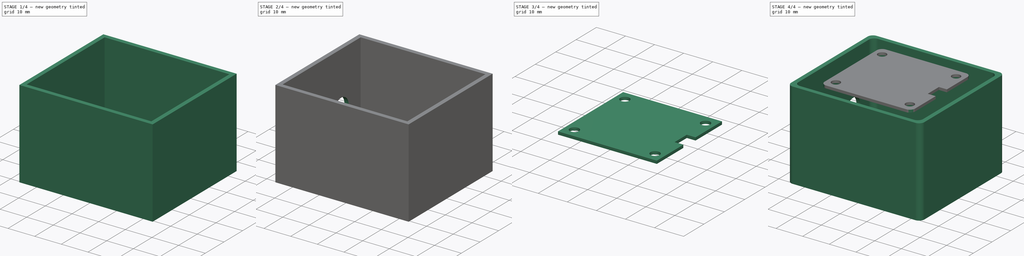
[diagram: build sequence overview — one tinted view per stage of 4, left to right]
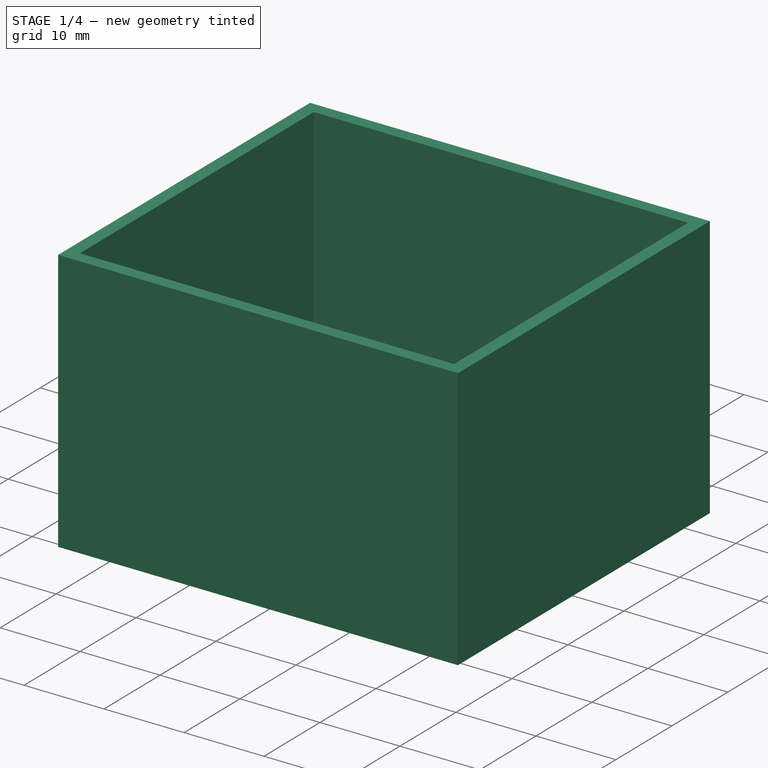
[diagram: stage 1 of 4 — iso view after this stage's code; geometry added in this stage tinted green]
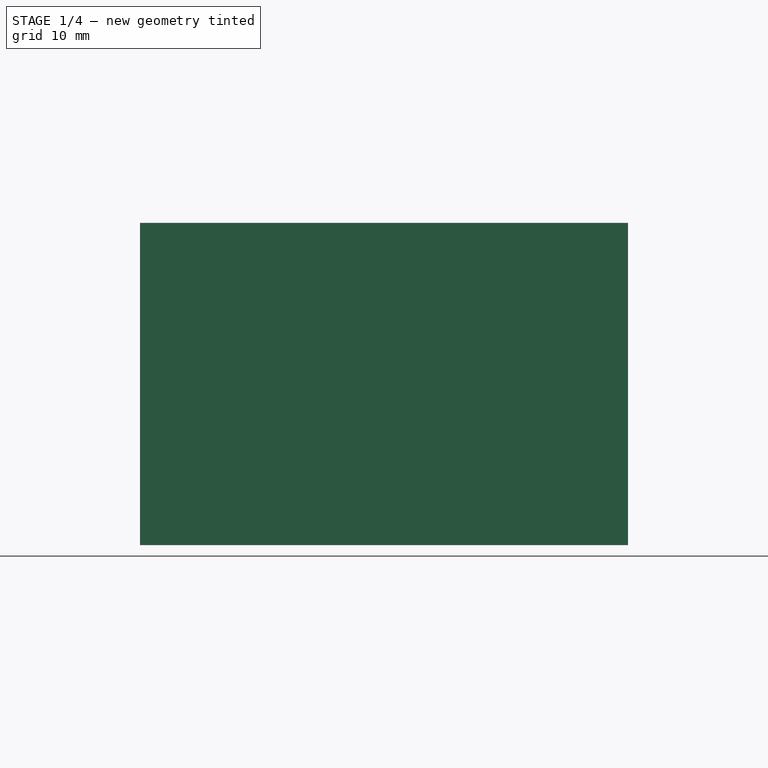
[diagram: stage 1 of 4 — front view after this stage's code; geometry added in this stage tinted green]
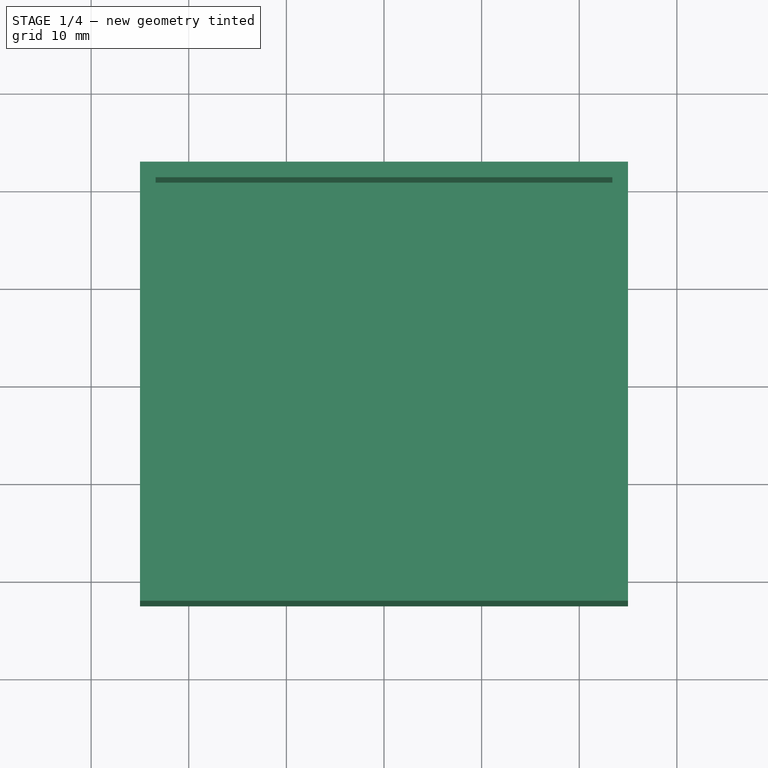
[diagram: stage 1 of 4 — top view after this stage's code; geometry added in this stage tinted green]
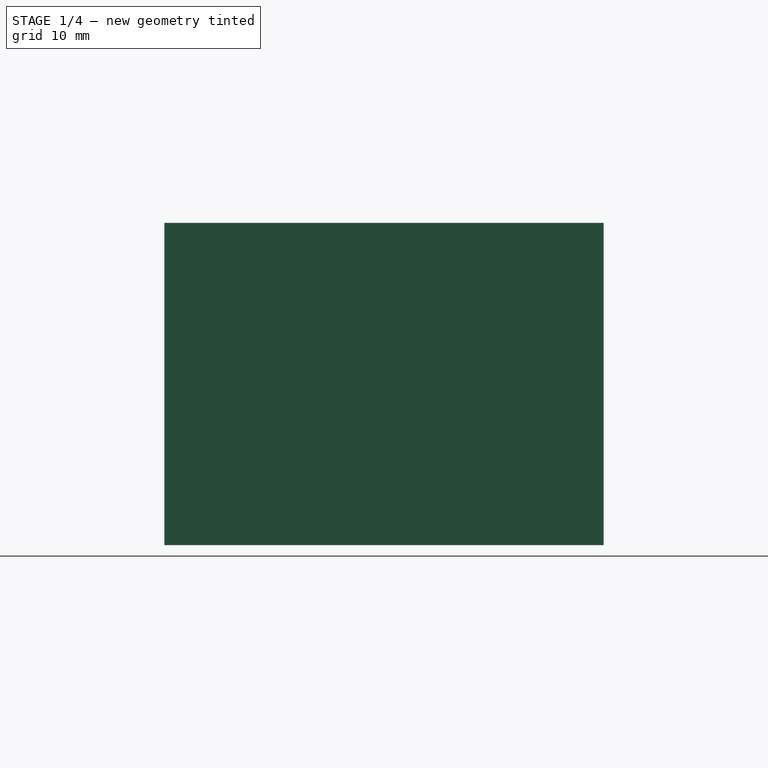
[diagram: stage 1 of 4 — right view after this stage's code; geometry added in this stage tinted green]
FCSTD DOCUMENT  (FreeCAD 0.19R24415 (Git))
Label: TAExternalPowerCase
License: All rights reserved
LicenseURL: http://en.wikipedia.org/wiki/All_rights_reserved
objects: Sketcher::SketchObject×6, PartDesign::Pad×4, PartDesign::ShapeBinder×3, PartDesign::Fillet×3, PartDesign::Body×3, PartDesign::Pocket×2, App::MeasureDistance×1
note: 30 computed .brp shape members not serialized (recipe doc carries the construction recipe); baked Part::Feature solids carry a one-line shape summary decoded from their .brp

FEATURE [Sketcher::SketchObject] Sketch
  FullyConstrained = true
  MapMode = 5
  Support = -> [XY_Plane]
  sketch-geometry (4):
    g0: LineSegment StartX=-25 StartY=22.5 StartZ=0 EndX=25 EndY=22.5 EndZ=0
    g1: LineSegment StartX=25 StartY=22.5 StartZ=0 EndX=25 EndY=-22.5 EndZ=0
    g2: LineSegment StartX=25 StartY=-22.5 StartZ=0 EndX=-25 EndY=-22.5 EndZ=0
    g3: LineSegment StartX=-25 StartY=-22.5 StartZ=0 EndX=-25 EndY=22.5 EndZ=0
  constraints (10):
    c: Coincident(g0,g1)
    c: Coincident(g1,g2)
    c: Coincident(g2,g3)
    c: Coincident(g3,g0)
    c: Horizontal(g2)
    c: Vertical(g1)
    c: Distance(g2) = 50
    c: Distance(g1) = 45
    c: Symmetric(g2,g0,g-1)
    c: Symmetric(g0,g0,g-2)
FEATURE [PartDesign::Pad] Pad
  Direction = (1,1,1)
  Length = 1
  Length2 = 100
  Profile = -> Sketch
  Type = 0
FEATURE [Sketcher::SketchObject] Sketch001
  ExternalGeometry = -> [Pad]
  FullyConstrained = true
  MapMode = 5
  Placement = pos=(0,0,1) rot=(0,0,1;0rad)
  Support = -> [Pad]
  expr: Constraints[18] = 0.4 * 4
  sketch-geometry (8):
    g0: LineSegment StartX=-25 StartY=22.5 StartZ=0 EndX=25 EndY=22.5 EndZ=0
    g1: LineSegment StartX=25 StartY=22.5 StartZ=0 EndX=25 EndY=-22.5 EndZ=0
    g2: LineSegment StartX=25 StartY=-22.5 StartZ=0 EndX=-25 EndY=-22.5 EndZ=0
    g3: LineSegment StartX=-25 StartY=-22.5 StartZ=0 EndX=-25 EndY=22.5 EndZ=0
    g4: LineSegment StartX=-23.4 StartY=20.9 StartZ=0 EndX=23.4 EndY=20.9 EndZ=0
    g5: LineSegment StartX=23.4 StartY=20.9 StartZ=0 EndX=23.4 EndY=-20.9 EndZ=0
    g6: LineSegment StartX=23.4 StartY=-20.9 StartZ=0 EndX=-23.4 EndY=-20.9 EndZ=0
    g7: LineSegment StartX=-23.4 StartY=-20.9 StartZ=0 EndX=-23.4 EndY=20.9 EndZ=0
  constraints (22):
    c: Coincident(g0,g1)
    c: Coincident(g1,g2)
    c: Coincident(g2,g3)
    c: Coincident(g3,g0)
    c: Horizontal(g0)
    c: Horizontal(g2)
    c: Vertical(g1)
    c: Vertical(g3)
    c: Coincident(g0,g-6)
    c: Coincident(g1,g-5)
    c: Coincident(g4,g5)
    c: Coincident(g5,g6)
    c: Coincident(g6,g7)
    c: Coincident(g7,g4)
    c: Horizontal(g4)
    c: Horizontal(g6)
    c: Vertical(g5)
    c: Vertical(g7)
    c: DistanceX(g0,g4) = 1.6
    c: DistanceY(g4,g0) = 1.6
    c: DistanceY(g1,g5) = 1.6
    c: DistanceX(g5,g1) = 1.6
FEATURE [PartDesign::Pad] Pad001
  BaseFeature = -> Pad
  Direction = (1,1,1)
  Length = 32
  Length2 = 100
  Profile = -> Sketch001
  Type = 0
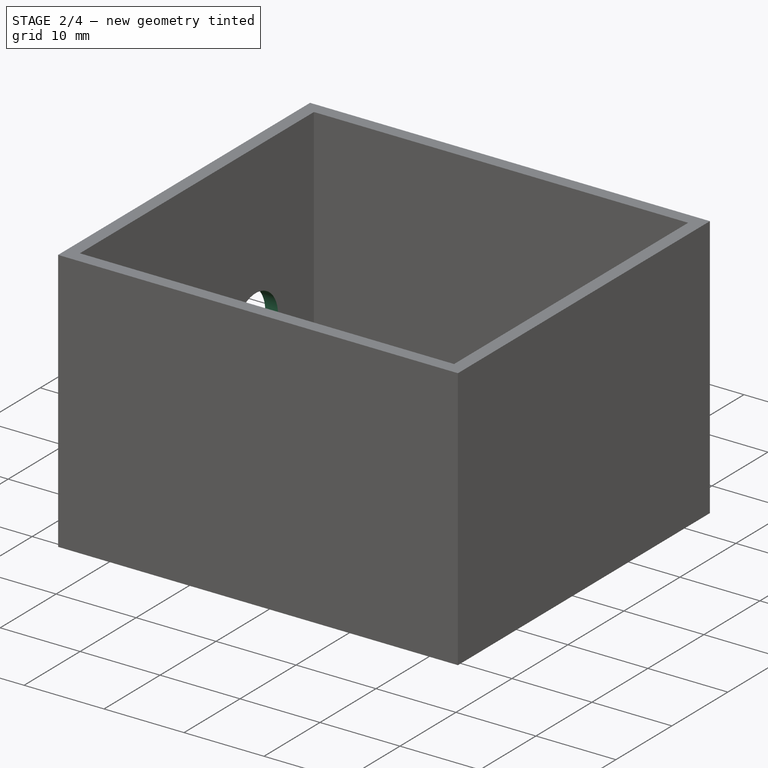
[diagram: stage 2 of 4 — iso view after this stage's code; geometry added in this stage tinted green]
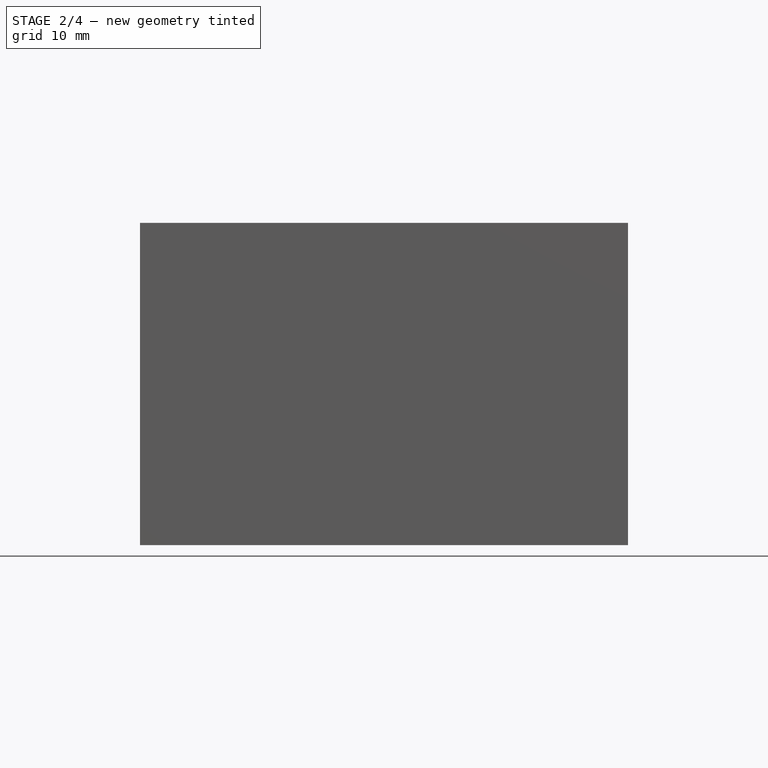
[diagram: stage 2 of 4 — front view after this stage's code; geometry added in this stage tinted green]
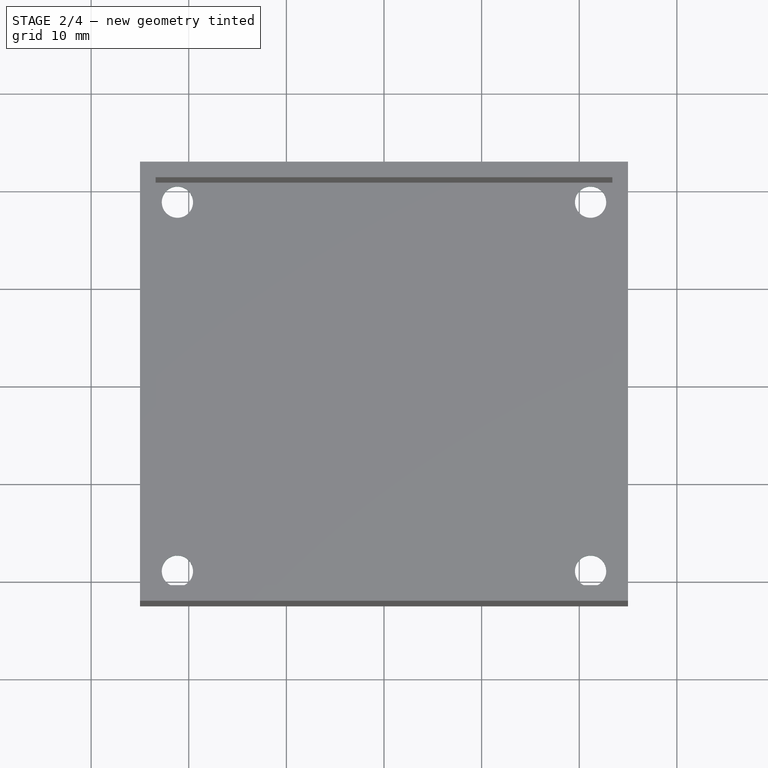
[diagram: stage 2 of 4 — top view after this stage's code; geometry added in this stage tinted green]
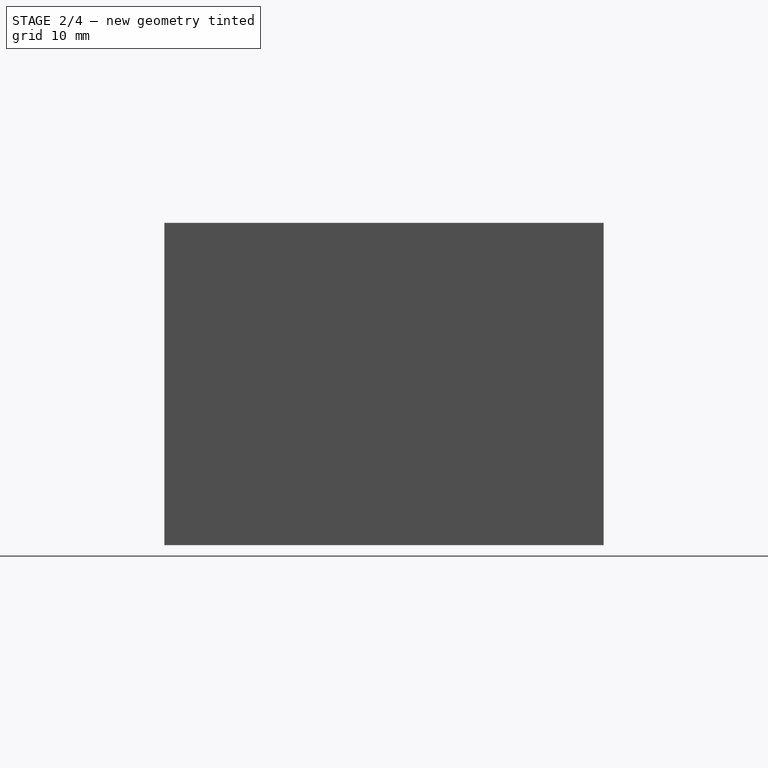
[diagram: stage 2 of 4 — right view after this stage's code; geometry added in this stage tinted green]
FEATURE [Sketcher::SketchObject] Sketch002
  ExternalGeometry = -> [Pad001]
  FullyConstrained = true
  MapMode = 5
  Placement = pos=(0,0,1) rot=(0,0,1;0rad)
  Support = -> [Pad001]
  sketch-geometry (6):
    g0: Circle CenterX=-21.1625 CenterY=18.9016 CenterZ=0 NormalX=0 NormalY=0 NormalZ=1 AngleXU=0 Radius=1.6
    g1: Circle CenterX=21.1625 CenterY=18.9016 CenterZ=0 NormalX=0 NormalY=0 NormalZ=1 AngleXU=0 Radius=1.6
    g2: Circle CenterX=21.1625 CenterY=-18.9016 CenterZ=0 NormalX=0 NormalY=0 NormalZ=1 AngleXU=0 Radius=1.6
    g3: Circle CenterX=-21.1625 CenterY=-18.9016 CenterZ=0 NormalX=0 NormalY=0 NormalZ=1 AngleXU=0 Radius=1.6
    g4: LineSegment StartX=-23.4 StartY=20.9 StartZ=0 EndX=23.4 EndY=-20.9 EndZ=0
    g5: LineSegment StartX=23.4 StartY=20.9 StartZ=0 EndX=-23.4 EndY=-20.9 EndZ=0
  constraints (16):
    c: Diameter(g0) = 3.2
    c: Diameter(g1) = 3.2
    c: Diameter(g3) = 3.2
    c: Diameter(g2) = 3.2
    c: Coincident(g4,g-3)
    c: Coincident(g4,g-5)
    c: Coincident(g5,g-4)
    c: Coincident(g5,g-6)
    c: PointOnObject(g3,g5)
    c: PointOnObject(g0,g4)
    c: PointOnObject(g1,g5)
    c: PointOnObject(g2,g4)
    c: Horizontal(g2,g3)
    c: Horizontal(g0,g1)
    c: Vertical(g0,g3)
    c: Distance(g0,g4) = 3
FEATURE [PartDesign::Pocket] Pocket
  BaseFeature = -> Pad001
  Length = 5
  Length2 = 100
  Profile = -> Sketch002
  Type = 0
FEATURE [Sketcher::SketchObject] Sketch003
  FullyConstrained = false
  MapMode = 5
  Placement = pos=(-25,0,0) rot=(0.57735,-0.57735,-0.57735;2.0944rad)
  sketch-geometry (5):
    g0: ArcOfCircle CenterX=6.5 CenterY=12.5 CenterZ=0 NormalX=0 NormalY=0 NormalZ=1 AngleXU=0 Radius=4.5 StartAngle=3.61747 EndAngle=5.8073
    g1: Circle CenterX=-10.5 CenterY=12.5 CenterZ=0 NormalX=0 NormalY=0 NormalZ=1 AngleXU=0 Radius=4
    g2: LineSegment StartX=2.5 StartY=14.5616 StartZ=0 EndX=2.5 EndY=10.4384 EndZ=0
    g3: LineSegment StartX=10.5 StartY=14.5616 StartZ=0 EndX=10.5 EndY=10.4384 EndZ=0
    g4: ArcOfCircle CenterX=6.5 CenterY=12.5 CenterZ=0 NormalX=0 NormalY=0 NormalZ=1 AngleXU=0 Radius=4.5 StartAngle=0.475882 EndAngle=2.66571
  constraints (12):
    c: Vertical(g2)
    c: Vertical(g3)
    c: Horizontal(g2,g3)
    c: Distance(g2,g3) = 8
    c: Diameter(g1) = 8
    c: Diameter(g0) = 9
    c: Coincident(g0,g2)
    c: Coincident(g4,g2)
    c: Equal(g0,g4)
    c: Coincident(g0,g3)
    c: Coincident(g4,g3)
    c: Coincident(g0,g4)
FEATURE [PartDesign::Pocket] Pocket001
  BaseFeature = -> Pocket
  Length = 5
  Length2 = 100
  Profile = -> Sketch003
  Type = 0
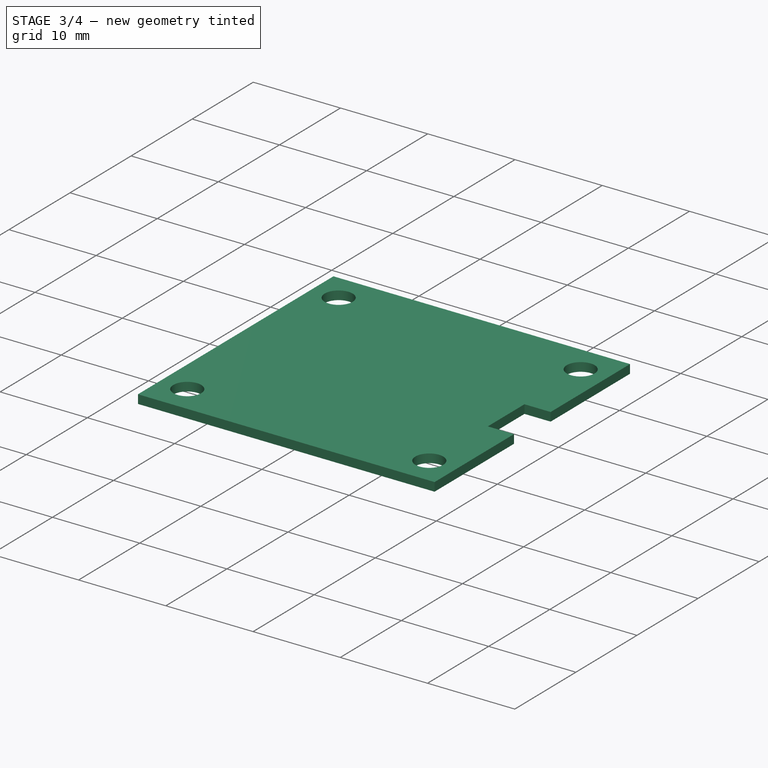
[diagram: stage 3 of 4 — iso view after this stage's code; geometry added in this stage tinted green]
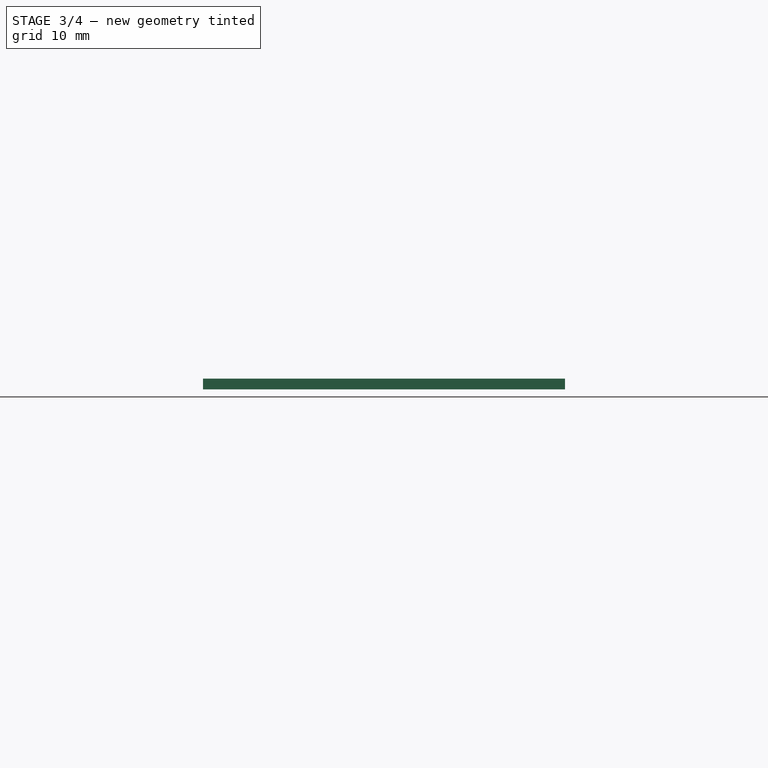
[diagram: stage 3 of 4 — front view after this stage's code; geometry added in this stage tinted green]
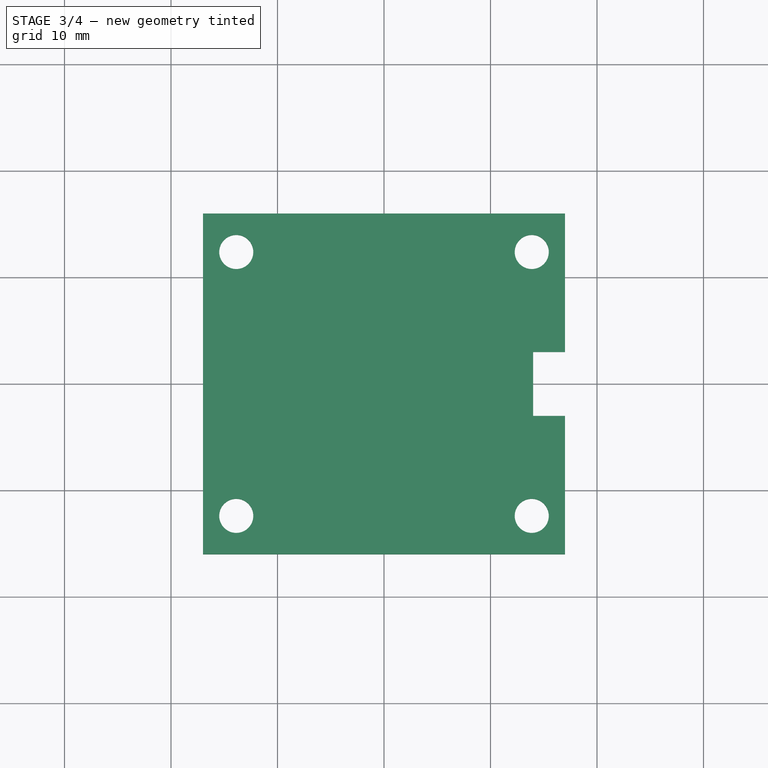
[diagram: stage 3 of 4 — top view after this stage's code; geometry added in this stage tinted green]
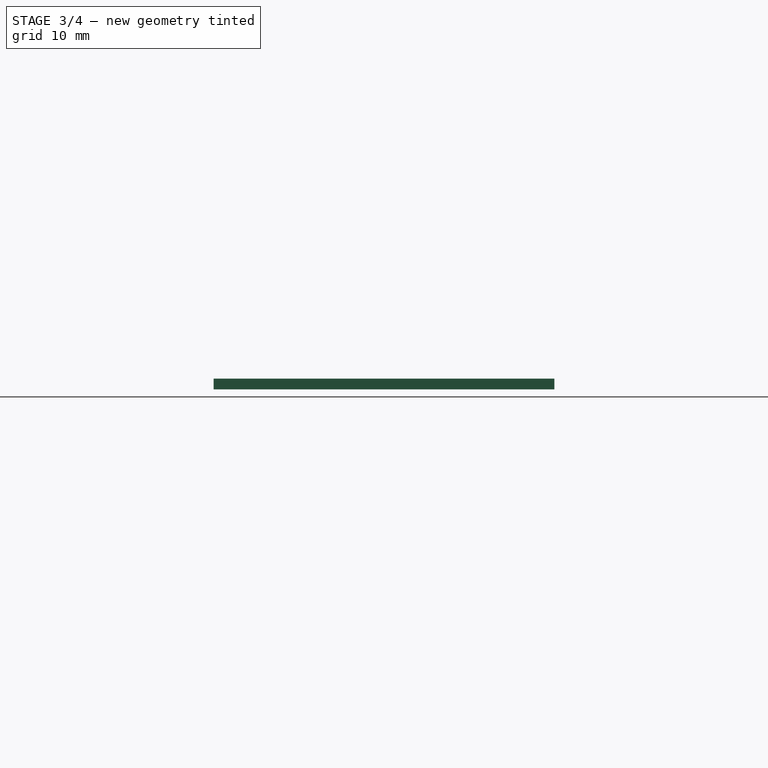
[diagram: stage 3 of 4 — right view after this stage's code; geometry added in this stage tinted green]
FEATURE [PartDesign::ShapeBinder] ReferencePocket001
  Support = -> [Pocket001]
  TraceSupport = false
FEATURE [PartDesign::ShapeBinder] ReferencePocket001001
  Placement = pos=(0,0,32) rot=(0,0,1;0rad)
  Support = -> [Pocket001]
  TraceSupport = false
FEATURE [Sketcher::SketchObject] Sketch004
  FullyConstrained = true
  MapMode = 5
  Placement = pos=(0,0,33) rot=(0,0,1;0rad)
  Support = -> [ReferencePocket001001]
  expr: Constraints[49] = 34 / 2 + 3.2 / 2
  sketch-geometry (22):
    g0: LineSegment StartX=-25 StartY=22.5 StartZ=0 EndX=25 EndY=22.5 EndZ=0
    g1: LineSegment StartX=25 StartY=22.5 StartZ=0 EndX=25 EndY=-22.5 EndZ=0
    g2: LineSegment StartX=25 StartY=-22.5 StartZ=0 EndX=-25 EndY=-22.5 EndZ=0
    g3: LineSegment StartX=-25 StartY=-22.5 StartZ=0 EndX=-25 EndY=22.5 EndZ=0
    g4: Circle CenterX=-21.1625 CenterY=18.9016 CenterZ=0 NormalX=0 NormalY=0 NormalZ=1 AngleXU=0 Radius=1.6
    g5: Circle CenterX=21.1625 CenterY=18.9016 CenterZ=0 NormalX=0 NormalY=0 NormalZ=1 AngleXU=0 Radius=1.6
    g6: Circle CenterX=21.1625 CenterY=-18.9016 CenterZ=0 NormalX=0 NormalY=0 NormalZ=1 AngleXU=0 Radius=1.6
    g7: Circle CenterX=-21.1625 CenterY=-18.9016 CenterZ=0 NormalX=0 NormalY=0 NormalZ=1 AngleXU=0 Radius=1.6
    g8: GeomPoint X=-23.4 Y=20.9 Z=0
    g9: GeomPoint X=-23.4 Y=-20.9 Z=0
    g10: GeomPoint X=23.4 Y=20.9 Z=0
    g11: GeomPoint X=23.4 Y=-20.9 Z=0
    g12: LineSegment StartX=-23.4 StartY=20.9 StartZ=0 EndX=23.4 EndY=-20.9 EndZ=0
    g13: LineSegment StartX=23.4 StartY=20.9 StartZ=0 EndX=-23.4 EndY=-20.9 EndZ=0
    g14: ArcOfCircle CenterX=0 CenterY=0 CenterZ=0 NormalX=0 NormalY=0 NormalZ=1 AngleXU=0 Radius=14.5 StartAngle=0.208402 EndAngle=6.07478
    g15: LineSegment StartX=14.1863 StartY=3 StartZ=0 EndX=19.1863 EndY=3 EndZ=0
    g16: LineSegment StartX=19.1863 StartY=3 StartZ=0 EndX=19.1863 EndY=-3 EndZ=0
    g17: LineSegment StartX=14.1863 StartY=-3 StartZ=0 EndX=19.1863 EndY=-3 EndZ=0
    g18: Circle CenterX=13.8723 CenterY=12.3902 CenterZ=0 NormalX=0 NormalY=0 NormalZ=1 AngleXU=0 Radius=1.6
    g19: Circle CenterX=-13.8723 CenterY=12.3902 CenterZ=0 NormalX=0 NormalY=0 NormalZ=1 AngleXU=0 Radius=1.6
    g20: Circle CenterX=-13.8723 CenterY=-12.3902 CenterZ=0 NormalX=0 NormalY=0 NormalZ=1 AngleXU=0 Radius=1.6
    g21: Circle CenterX=13.8723 CenterY=-12.3902 CenterZ=0 NormalX=0 NormalY=0 NormalZ=1 AngleXU=0 Radius=1.6
  constraints (54):
    c: Coincident(g0,g1)
    c: Coincident(g1,g2)
    c: Coincident(g2,g3)
    c: Coincident(g3,g0)
    c: Horizontal(g2)
    c: Vertical(g1)
    c: Distance(g3) = 45
    c: Distance(g0) = 50
    c: Symmetric(g0,g2,g-1)
    c: Symmetric(g0,g0,g-2)
    c: Horizontal(g6,g7)
    c: Horizontal(g4,g5)
    c: Vertical(g5,g6)
    c: Vertical(g7,g4)
    c: Diameter(g4) = 3.2
    c: Diameter(g5) = 3.2
    c: Diameter(g7) = 3.2
    c: Diameter(g6) = 3.2
    c: DistanceX(g0,g8) = 1.6
    c: DistanceY(g8,g0) = 1.6
    c: Symmetric(g9,g8,g-1)
    c: Symmetric(g8,g10,g-2)
    c: Symmetric(g10,g11,g-1)
    c: Coincident(g12,g8)
    c: Coincident(g12,g11)
    c: Coincident(g13,g10)
    c: Coincident(g13,g9)
    c: Distance(g4,g8) = 3
    c: PointOnObject(g4,g12)
    c: PointOnObject(g5,g13)
    c: PointOnObject(g7,g13)
    c: Coincident(g14,g-1)
    c: Diameter(g14) = 29
    c: Coincident(g16,g15)
    c: Coincident(g17,g16)
    c: Horizontal(g17)
    c: Horizontal(g15)
    c: Symmetric(g16,g15,g-1)
    c: Distance(g15) = 5
    c: Distance(g16) = 6
    c: Coincident(g14,g15)
    c: Coincident(g14,g17)
    c: PointOnObject(g18,g13)
    c: PointOnObject(g19,g12)
    c: PointOnObject(g20,g13)
    c: PointOnObject(g21,g12)
    c: Vertical(g19,g20)
    c: Vertical(g18,g21)
    c: Horizontal(g20,g21)
    c: Distance(g14,g19) = 18.6
    c: Diameter(g21) = 3.2
    c: Diameter(g18) = 3.2
    c: Diameter(g19) = 3.2
    c: Diameter(g20) = 3.2
FEATURE [PartDesign::Pad] Pad002
  Direction = (1,1,1)
  Length = 1.5
  Length2 = 100
  Placement = pos=(0,0,32) rot=(0,0,1;0rad)
  Profile = -> Sketch004
  Type = 0
FEATURE [PartDesign::Fillet] Fillet
  Base = -> Pad002 [Edge5,Edge8,Edge2,Edge1]
  BaseFeature = -> Pad002
  Placement = pos=(0,0,32) rot=(0,0,1;0rad)
  Radius = 2
  SupportTransform = false
FEATURE [PartDesign::Body] Body  label="Case"
  Group = -> [Sketch,Pad,Sketch001,Pad001,Sketch002,Pocket,Sketch003,Pocket001,Fillet001]
  Origin = -> Origin
  Tip = -> Fillet001
FEATURE [PartDesign::ShapeBinder] ReferenceFillet
  Support = -> [Fillet]
  TraceSupport = false
FEATURE [Sketcher::SketchObject] Sketch005
  FullyConstrained = true
  MapMode = 5
  Placement = pos=(0,0,33) rot=(1,0,0;3.14159rad)
  Support = -> [ReferenceFillet]
  expr: Constraints[28] = 34 / 2 + 3.2 / 2
  sketch-geometry (14):
    g0: LineSegment StartX=-17 StartY=16 StartZ=0 EndX=17 EndY=16 EndZ=0
    g1: LineSegment StartX=17 StartY=16 StartZ=0 EndX=17 EndY=3 EndZ=0
    g2: LineSegment StartX=17 StartY=-16 StartZ=0 EndX=-17 EndY=-16 EndZ=0
    g3: LineSegment StartX=-17 StartY=-16 StartZ=0 EndX=-17 EndY=16 EndZ=0
    g4: LineSegment StartX=17 StartY=3 StartZ=0 EndX=14 EndY=3 EndZ=0
    g5: LineSegment StartX=14 StartY=3 StartZ=0 EndX=14 EndY=-3 EndZ=0
    g6: LineSegment StartX=14 StartY=-3 StartZ=0 EndX=17 EndY=-3 EndZ=0
    g7: LineSegment StartX=17 StartY=-3 StartZ=0 EndX=17 EndY=-16 EndZ=0
    g8: Circle CenterX=-13.8723 CenterY=12.3902 CenterZ=0 NormalX=0 NormalY=0 NormalZ=1 AngleXU=0 Radius=1.6
    g9: Circle CenterX=13.8723 CenterY=12.3902 CenterZ=0 NormalX=0 NormalY=0 NormalZ=1 AngleXU=0 Radius=1.6
    g10: Circle CenterX=13.8723 CenterY=-12.3902 CenterZ=0 NormalX=0 NormalY=0 NormalZ=1 AngleXU=0 Radius=1.6
    g11: Circle CenterX=-13.8723 CenterY=-12.3902 CenterZ=0 NormalX=0 NormalY=0 NormalZ=1 AngleXU=0 Radius=1.6
    g12: LineSegment StartX=-13.8723 StartY=-12.3902 StartZ=0 EndX=13.8723 EndY=12.3902 EndZ=0
    g13: LineSegment StartX=13.8723 StartY=-12.3902 StartZ=0 EndX=-13.8723 EndY=12.3902 EndZ=0
  constraints (36):
    c: Coincident(g0,g1)
    c: Coincident(g7,g2)
    c: Coincident(g2,g3)
    c: Coincident(g3,g0)
    c: Horizontal(g2)
    c: Vertical(g1)
    c: Symmetric(g0,g2,g-1)
    c: Symmetric(g0,g0,g-2)
    c: DistanceX(g0,g-1) = 17
    c: DistanceY(g2,g-1) = 16
    c: Coincident(g4,g5)
    c: Coincident(g5,g6)
    c: Horizontal(g4)
    c: Horizontal(g6)
    c: Symmetric(g4,g5,g-1)
    c: Distance(g5) = 6
    c: Distance(g4,g4) = 3
    c: Coincident(g1,g4)
    c: Tangent(g1,g7)
    c: Coincident(g7,g6)
    c: Horizontal(g8,g9)
    c: Horizontal(g10,g11)
    c: Vertical(g11,g8)
    c: Vertical(g9,g10)
    c: Diameter(g9) = 3.2
    c: Diameter(g8) = 3.2
    c: Diameter(g11) = 3.2
    c: Diameter(g10) = 3.2
    c: Distance(g-1,g11) = 18.6
    c: Coincident(g12,g11)
    c: Coincident(g12,g9)
    c: Coincident(g13,g10)
    c: Coincident(g13,g8)
    c: PointOnObject(g-1,g12)
    c: PointOnObject(g-1,g13)
    c: Angle(g-1,g12) = 0.729024
FEATURE [PartDesign::Pad] Pad003
  Direction = (1,1,1)
  Length = 1
  Length2 = 100
  Profile = -> Sketch005
  Type = 0
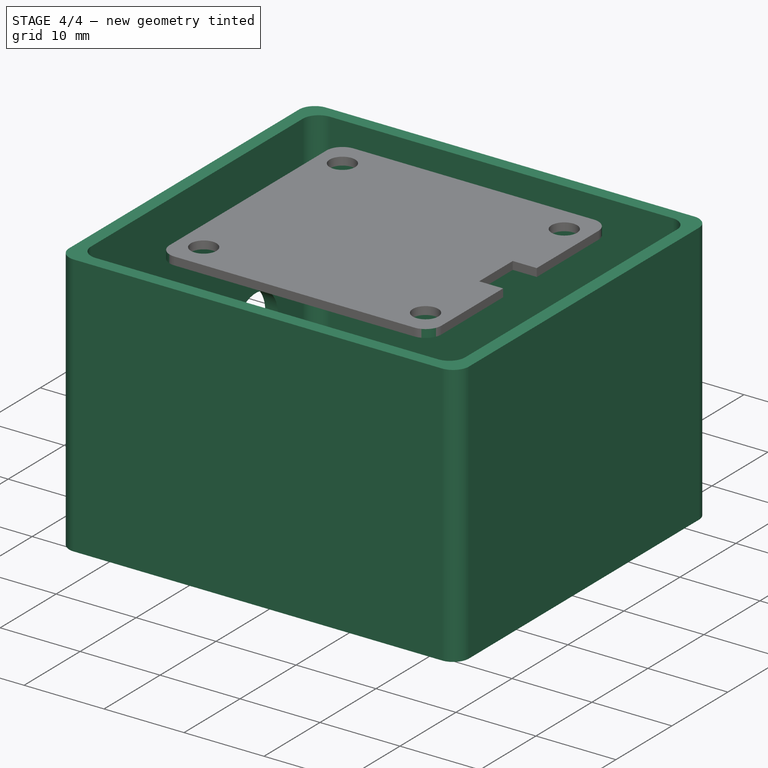
[diagram: stage 4 of 4 — iso view after this stage's code; geometry added in this stage tinted green]
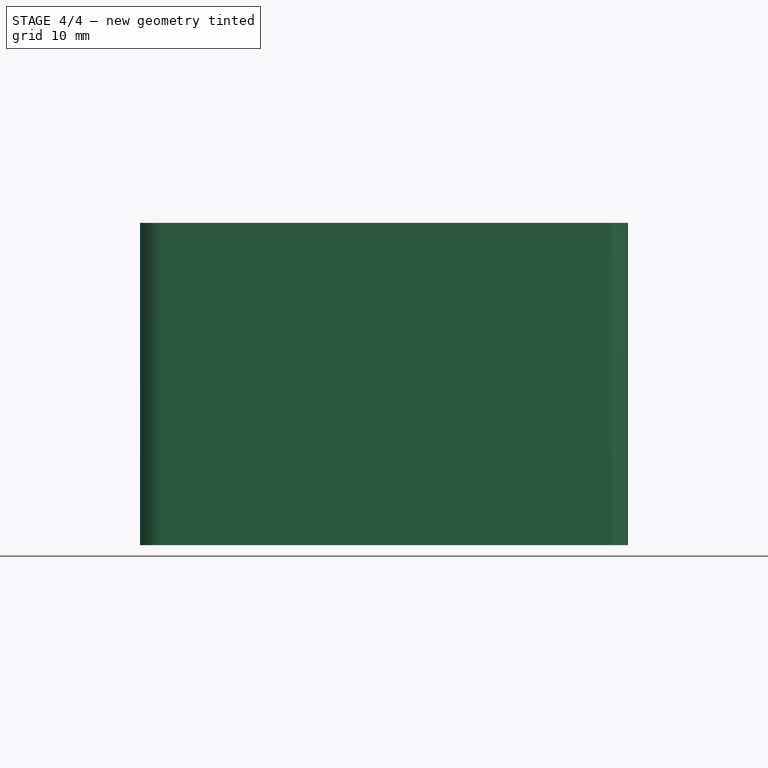
[diagram: stage 4 of 4 — front view after this stage's code; geometry added in this stage tinted green]
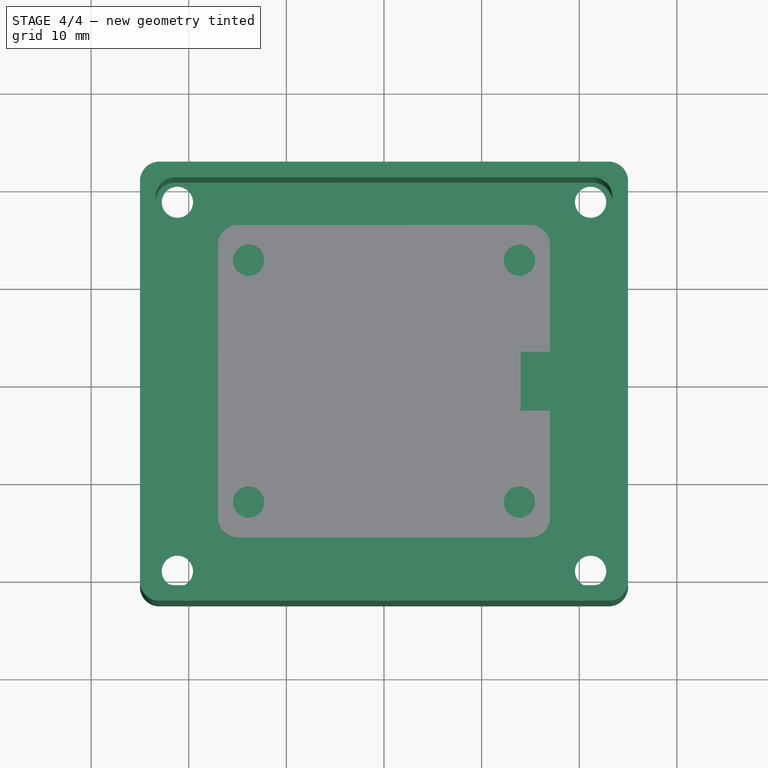
[diagram: stage 4 of 4 — top view after this stage's code; geometry added in this stage tinted green]
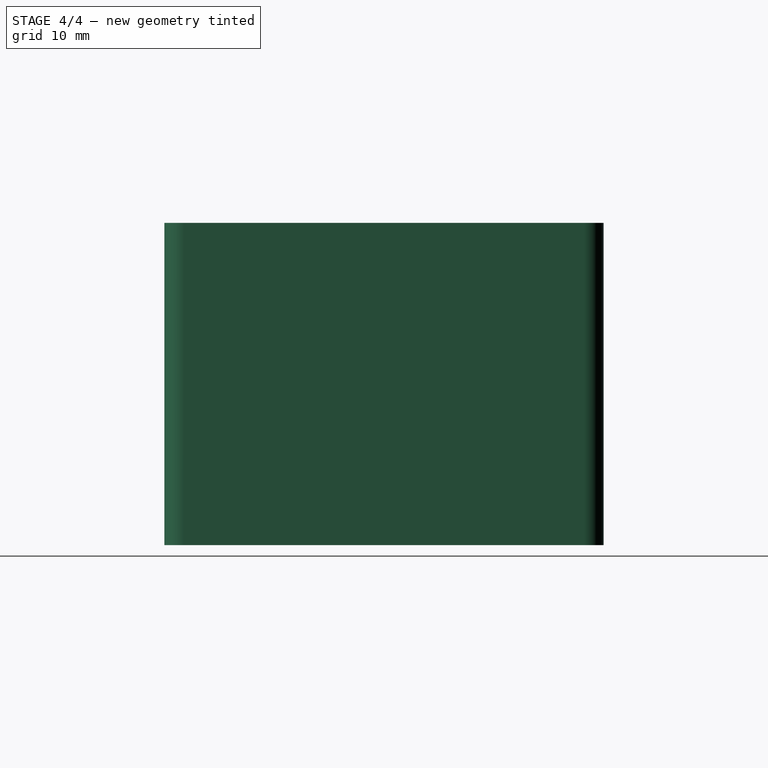
[diagram: stage 4 of 4 — right view after this stage's code; geometry added in this stage tinted green]
FEATURE [PartDesign::Body] Body001  label="Lid"
  Group = -> [ReferencePocket001,ReferencePocket001001,Sketch004,Pad002,Fillet]
  Origin = -> Origin001
  Tip = -> Fillet
FEATURE [PartDesign::Fillet] Fillet001
  Base = -> Pocket001 [Edge57,Edge27,Edge17,Edge20,Edge58,Edge16,Edge59,Edge56]
  BaseFeature = -> Pocket001
  Radius = 2
  SupportTransform = false
FEATURE [PartDesign::Fillet] Fillet002
  Base = -> Pad003 [Edge1,Edge20,Edge17,Edge2]
  BaseFeature = -> Pad003
  Radius = 2
  SupportTransform = false
FEATURE [PartDesign::Body] Body002  label="SocketHolder"
  Group = -> [ReferenceFillet,Sketch005,Pad003,Fillet002]
  Origin = -> Origin002
  Tip = -> Fillet002
FEATURE [App::MeasureDistance] Distance  label="Distance: 34,50 mm"
  Distance = 34.4972
  P1 = (-25,-20.5,0.00280314)
  P2 = (-25,-20.5,34.5)
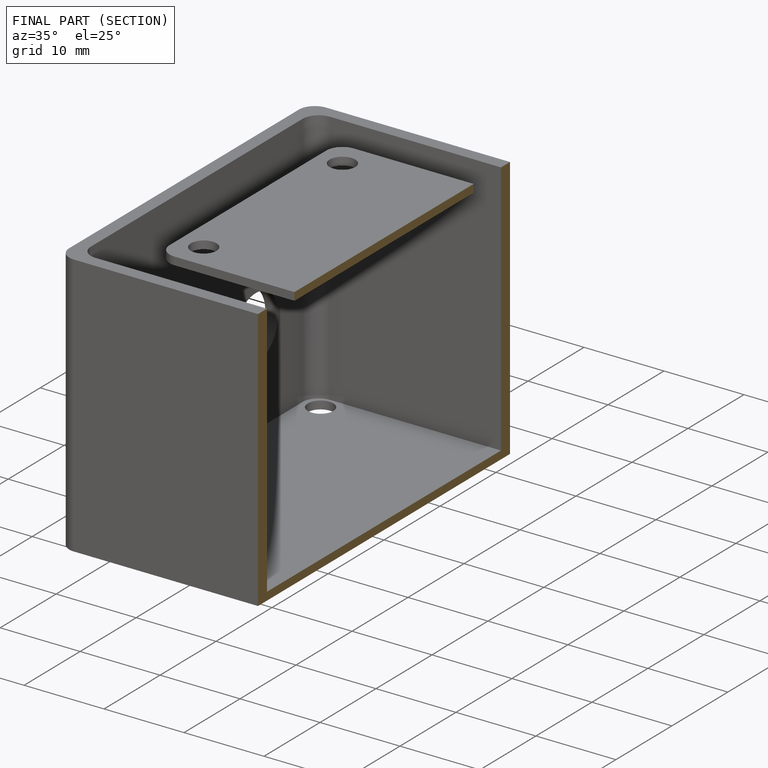
[diagram: finished part — half-section view (interior)]
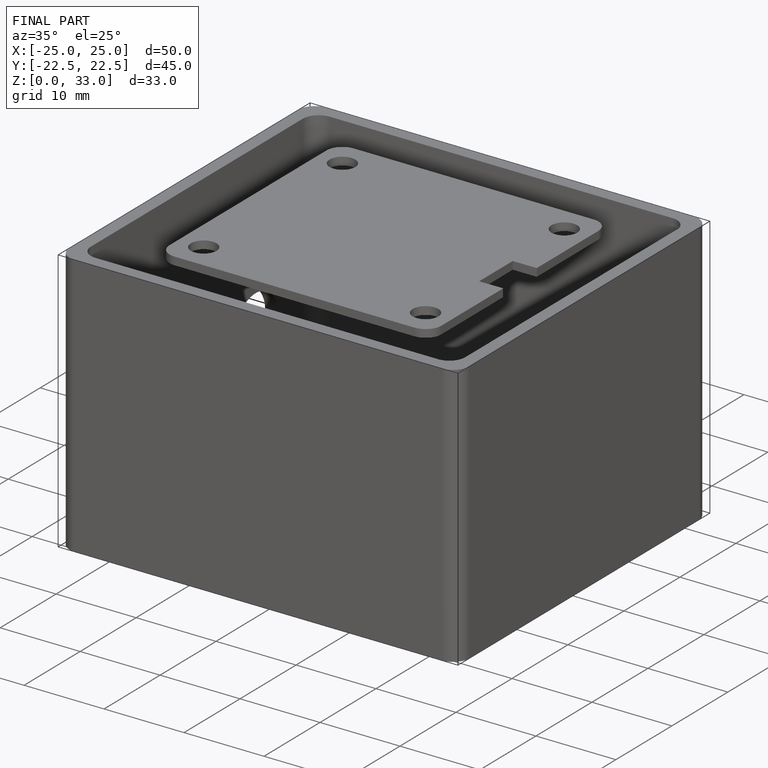
[diagram: finished part — iso view with bounding-box wireframe]
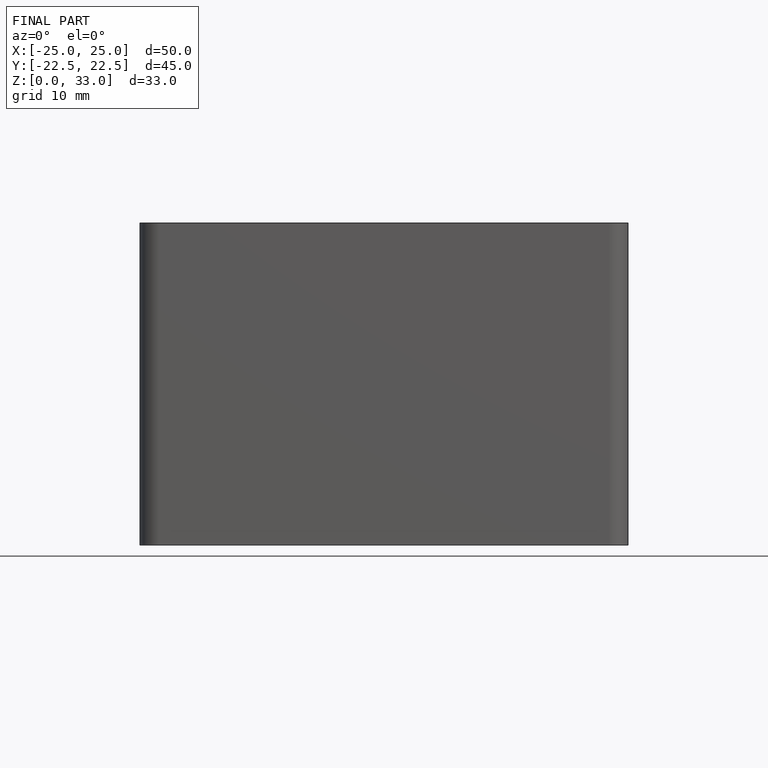
[diagram: finished part — front view with bounding-box wireframe]
